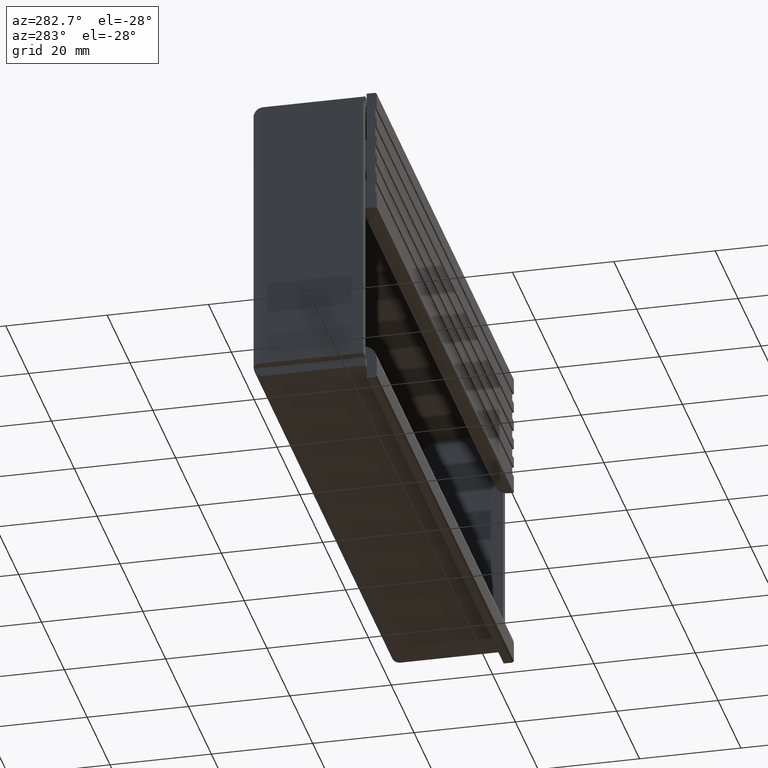
[diagram: clean part render]
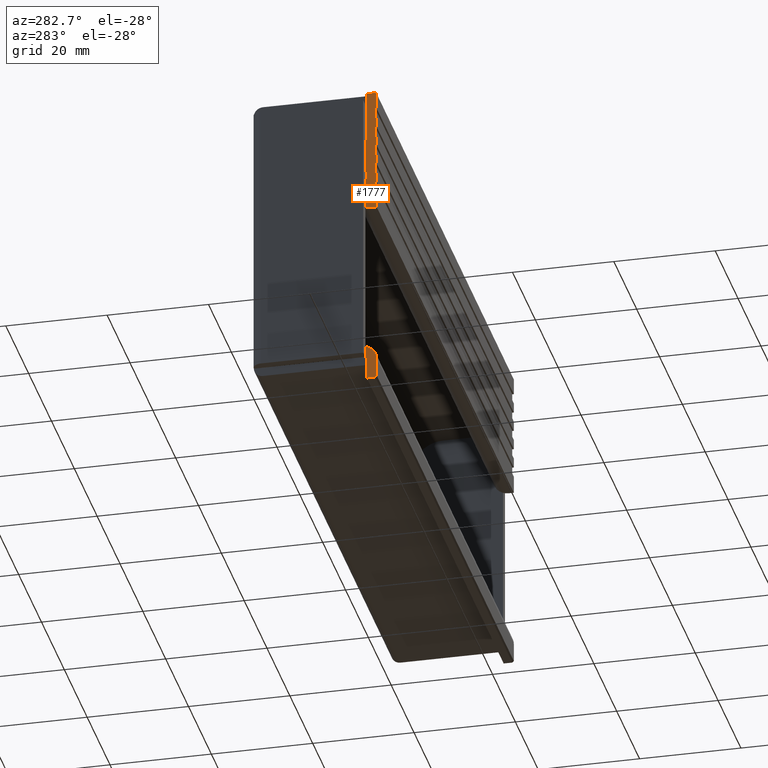
[diagram: same view with one face highlighted and labeled with its STEP entity id]
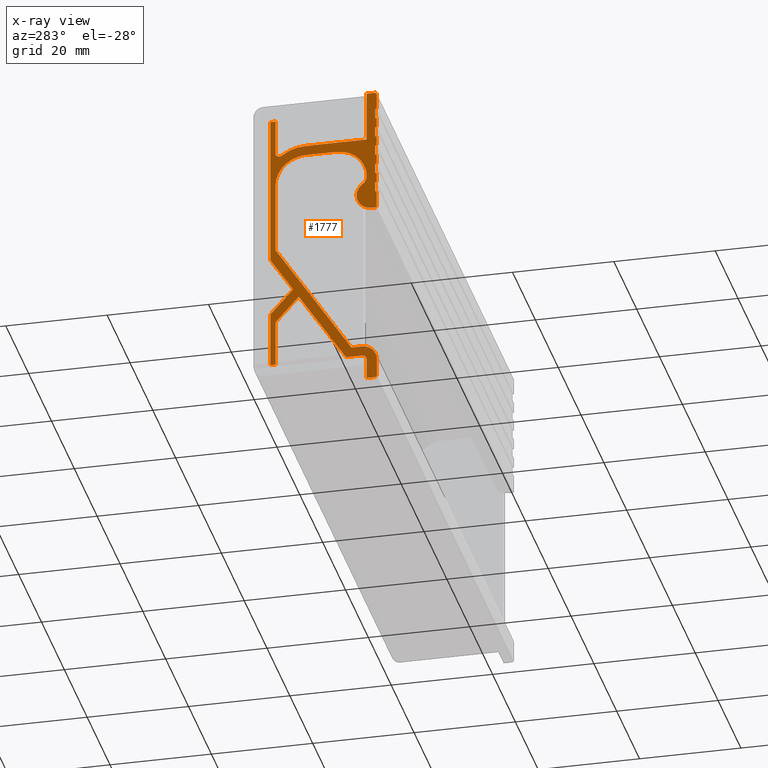
[diagram: x-ray of the same camera — body ghosted, the highlighted face saturated]
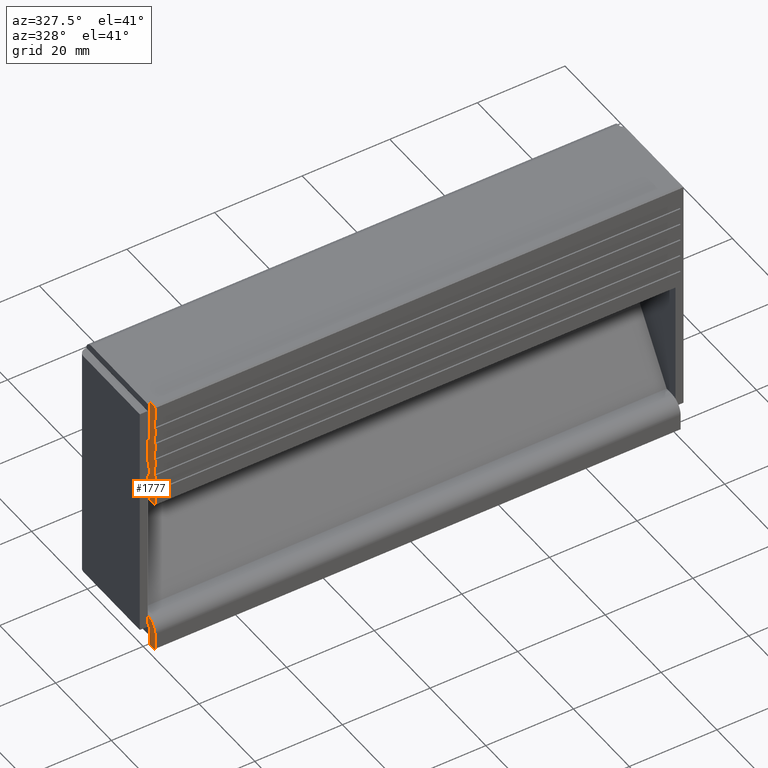
[diagram: same view with one face highlighted and labeled with its STEP entity id]
A machine part, auxiliary view. The second image highlights one B-rep face of the part: STEP entity #1777.
The next image is the same camera in x-ray: the body ghosted, the highlighted face saturated — about 0% of this face is hidden behind the body in this view.
A second angle (auxiliary view) of the same face is appended — the face is thin or edge-on in the first view.
In plain terms, the highlighted face is a freeform B-spline surface patch.
Its self-contained STEP definition (entity closure, byte-faithful):
#777=CARTESIAN_POINT('',(-60.0,18.999999999999702,27.872124824764452));
#778=VERTEX_POINT('',#777);
#786=CARTESIAN_POINT('',(-60.0,19.0,58.0));
#787=VERTEX_POINT('',#786);
#788=CARTESIAN_POINT('',(-60.0,19.0,58.0));
#789=CARTESIAN_POINT('',(-60.0,18.999999999999702,27.872124824764452));
#790=QUASI_UNIFORM_CURVE('',1,(#788,#789),.UNSPECIFIED.,.F.,.U.);
#791=EDGE_CURVE('',#787,#778,#790,.T.);
#813=CARTESIAN_POINT('',(-60.0,19.0,5.0));
#814=VERTEX_POINT('',#813);
#822=CARTESIAN_POINT('',(-60.0,19.0,16.094526800491948));
#823=VERTEX_POINT('',#822);
#824=CARTESIAN_POINT('',(-60.0,19.0,16.094526800491948));
#825=CARTESIAN_POINT('',(-60.0,19.0,5.0));
#826=QUASI_UNIFORM_CURVE('',1,(#824,#825),.UNSPECIFIED.,.F.,.U.);
#827=EDGE_CURVE('',#823,#814,#826,.T.);
#1347=CARTESIAN_POINT('',(-60.0,-3.048949959297925,65.096899879831994));
#1348=CARTESIAN_POINT('',(-60.0,20.048950522561821,65.096899879831994));
#1349=CARTESIAN_POINT('',(-60.0,-3.048949959297925,-3.096901542801561));
#1350=CARTESIAN_POINT('',(-60.0,20.048950522561821,-3.096901542801561));
#1351=B_SPLINE_SURFACE_WITH_KNOTS('',1,1,((#1347,#1349),(#1348,#1350)),.UNSPECIFIED.,.F.,.F.,.U.,(2,2),(2,2),(0.0,23.097900481859739),(0.0,68.193801422633555),.UNSPECIFIED.);
#1352=CARTESIAN_POINT('',(-60.0,14.518179000000000,21.0));
#1353=VERTEX_POINT('',#1352);
#1354=CARTESIAN_POINT('',(-60.0,19.0,16.094526800491948));
#1355=CARTESIAN_POINT('',(-60.0,14.518179000000000,21.0));
#1356=QUASI_UNIFORM_CURVE('',1,(#1354,#1355),.UNSPECIFIED.,.F.,.U.);
#1357=EDGE_CURVE('',#823,#1353,#1356,.T.);
#1358=ORIENTED_EDGE('',*,*,#1357,.F.);
#1359=ORIENTED_EDGE('',*,*,#827,.T.);
#1360=CARTESIAN_POINT('',(-60.0,18.0,5.0));
#1361=VERTEX_POINT('',#1360);
#1362=CARTESIAN_POINT('',(-60.0,18.0,5.0));
#1363=CARTESIAN_POINT('',(-60.0,19.0,5.0));
#1364=QUASI_UNIFORM_CURVE('',1,(#1362,#1363),.UNSPECIFIED.,.F.,.U.);
#1365=EDGE_CURVE('',#1361,#814,#1364,.T.);
#1366=ORIENTED_EDGE('',*,*,#1365,.F.);
#1367=CARTESIAN_POINT('',(-60.0,18.0,14.223929999999999));
#1368=VERTEX_POINT('',#1367);
#1369=CARTESIAN_POINT('',(-60.0,18.0,14.223929999999999));
#1370=CARTESIAN_POINT('',(-60.0,18.0,5.0));
#1371=QUASI_UNIFORM_CURVE('',1,(#1369,#1370),.UNSPECIFIED.,.F.,.U.);
#1372=EDGE_CURVE('',#1368,#1361,#1371,.T.);
#1373=ORIENTED_EDGE('',*,*,#1372,.F.);
#1374=CARTESIAN_POINT('',(-60.0,13.389838000000100,19.269876000000000));
#1375=VERTEX_POINT('',#1374);
#1376=CARTESIAN_POINT('',(-60.0,13.389838000000100,19.269876000000000));
#1377=CARTESIAN_POINT('',(-60.0,18.0,14.223929999999999));
#1378=QUASI_UNIFORM_CURVE('',1,(#1376,#1377),.UNSPECIFIED.,.F.,.U.);
#1379=EDGE_CURVE('',#1375,#1368,#1378,.T.);
#1380=ORIENTED_EDGE('',*,*,#1379,.F.);
#1381=CARTESIAN_POINT('',(-60.0,4.083395999999909,5.0));
#1382=VERTEX_POINT('',#1381);
#1383=CARTESIAN_POINT('',(-60.0,4.083395999999909,5.0));
#1384=CARTESIAN_POINT('',(-60.0,13.389838000000100,19.269876000000000));
#1385=QUASI_UNIFORM_CURVE('',1,(#1383,#1384),.UNSPECIFIED.,.F.,.U.);
#1386=EDGE_CURVE('',#1382,#1375,#1385,.T.);
#1387=ORIENTED_EDGE('',*,*,#1386,.F.);
#1388=CARTESIAN_POINT('',(-60.0,1.0,5.0));
#1389=VERTEX_POINT('',#1388);
#1390=CARTESIAN_POINT('',(-60.0,1.0,5.0));
#1391=CARTESIAN_POINT('',(-60.0,4.083395999999909,5.0));
#1392=QUASI_UNIFORM_CURVE('',1,(#1390,#1391),.UNSPECIFIED.,.F.,.U.);
#1393=EDGE_CURVE('',#1389,#1382,#1392,.T.);
#1394=ORIENTED_EDGE('',*,*,#1393,.F.);
#1395=CARTESIAN_POINT('',(-60.0,0.0,4.0));
#1396=VERTEX_POINT('',#1395);
#1397=CARTESIAN_POINT('',(-60.0,1.0,5.0));
#1398=CARTESIAN_POINT('',(-60.0,0.0,5.000000000000001));
#1399=CARTESIAN_POINT('',(-60.0,0.0,4.0));
#1407=(BOUNDED_CURVE()B_SPLINE_CURVE(2,(#1397,#1398,#1399),.UNSPECIFIED.,.F.,.U.)CURVE()GEOMETRIC_REPRESENTATION_ITEM()QUASI_UNIFORM_CURVE()RATIONAL_B_SPLINE_CURVE((1.0,0.707106781186548,1.0))REPRESENTATION_ITEM(''));
#1408=EDGE_CURVE('',#1389,#1396,#1407,.T.);
#1409=ORIENTED_EDGE('',*,*,#1408,.T.);
#1410=CARTESIAN_POINT('',(-60.0,0.0,0.0));
#1411=VERTEX_POINT('',#1410);
#1412=CARTESIAN_POINT('',(-60.0,0.0,0.0));
#1413=CARTESIAN_POINT('',(-60.0,0.0,4.0));
#1414=QUASI_UNIFORM_CURVE('',1,(#1412,#1413),.UNSPECIFIED.,.F.,.U.);
#1415=EDGE_CURVE('',#1411,#1396,#1414,.T.);
#1416=ORIENTED_EDGE('',*,*,#1415,.F.);
#1417=CARTESIAN_POINT('',(-60.0,-1.699999999999905,-1.040915E-016));
#1418=VERTEX_POINT('',#1417);
#1419=CARTESIAN_POINT('',(-60.0,-1.699999999999905,-1.040915E-016));
#1420=CARTESIAN_POINT('',(-60.0,0.0,0.0));
#1421=QUASI_UNIFORM_CURVE('',1,(#1419,#1420),.UNSPECIFIED.,.F.,.U.);
#1422=EDGE_CURVE('',#1418,#1411,#1421,.T.);
#1423=ORIENTED_EDGE('',*,*,#1422,.F.);
#1424=CARTESIAN_POINT('',(-60.0,-2.0,0.299999999999912));
#1425=VERTEX_POINT('',#1424);
#1426=CARTESIAN_POINT('',(-60.0,-2.0,0.299999999999912));
#1427=CARTESIAN_POINT('',(-60.0,-1.699999999999905,-1.040915E-016));
#1428=QUASI_UNIFORM_CURVE('',1,(#1426,#1427),.UNSPECIFIED.,.F.,.U.);
#1429=EDGE_CURVE('',#1425,#1418,#1428,.T.);
#1430=ORIENTED_EDGE('',*,*,#1429,.F.);
#1431=CARTESIAN_POINT('',(-60.0,-2.0,4.0));
#1432=VERTEX_POINT('',#1431);
#1433=CARTESIAN_POINT('',(-60.0,-2.0,4.0));
#1434=CARTESIAN_POINT('',(-60.0,-2.0,0.299999999999912));
#1435=QUASI_UNIFORM_CURVE('',1,(#1433,#1434),.UNSPECIFIED.,.F.,.U.);
#1436=EDGE_CURVE('',#1432,#1425,#1435,.T.);
#1437=ORIENTED_EDGE('',*,*,#1436,.F.);
#1438=CARTESIAN_POINT('',(-60.0,1.0,7.0));
#1439=VERTEX_POINT('',#1438);
#1440=CARTESIAN_POINT('',(-60.0,1.0,7.0));
#1441=CARTESIAN_POINT('',(-60.0,-2.000000000000000,6.999999999999999));
#1442=CARTESIAN_POINT('',(-60.0,-2.0,4.0));
#1450=(BOUNDED_CURVE()B_SPLINE_CURVE(2,(#1440,#1441,#1442),.UNSPECIFIED.,.F.,.U.)CURVE()GEOMETRIC_REPRESENTATION_ITEM()QUASI_UNIFORM_CURVE()RATIONAL_B_SPLINE_CURVE((1.0,0.707106781186548,1.0))REPRESENTATION_ITEM(''));
#1451=EDGE_CURVE('',#1439,#1432,#1450,.T.);
#1452=ORIENTED_EDGE('',*,*,#1451,.F.);
#1453=CARTESIAN_POINT('',(-60.0,3.0,7.0));
#1454=VERTEX_POINT('',#1453);
#1455=CARTESIAN_POINT('',(-60.0,3.0,7.0));
#1456=CARTESIAN_POINT('',(-60.0,1.0,7.0));
#1457=QUASI_UNIFORM_CURVE('',1,(#1455,#1456),.UNSPECIFIED.,.F.,.U.);
#1458=EDGE_CURVE('',#1454,#1439,#1457,.T.);
#1459=ORIENTED_EDGE('',*,*,#1458,.F.);
#1460=CARTESIAN_POINT('',(-60.0,18.0,30.0));
#1461=VERTEX_POINT('',#1460);
#1462=CARTESIAN_POINT('',(-60.0,18.0,30.0));
#1463=CARTESIAN_POINT('',(-60.0,3.0,7.0));
#1464=QUASI_UNIFORM_CURVE('',1,(#1462,#1463),.UNSPECIFIED.,.F.,.U.);
#1465=EDGE_CURVE('',#1461,#1454,#1464,.T.);
#1466=ORIENTED_EDGE('',*,*,#1465,.F.);
#1467=CARTESIAN_POINT('',(-60.0,18.0,44.0));
#1468=VERTEX_POINT('',#1467);
#1469=CARTESIAN_POINT('',(-60.0,18.0,44.0));
#1470=CARTESIAN_POINT('',(-60.0,18.0,30.0));
#1471=QUASI_UNIFORM_CURVE('',1,(#1469,#1470),.UNSPECIFIED.,.F.,.U.);
#1472=EDGE_CURVE('',#1468,#1461,#1471,.T.);
#1473=ORIENTED_EDGE('',*,*,#1472,.F.);
#1474=CARTESIAN_POINT('',(-60.0,12.0,50.0));
#1475=VERTEX_POINT('',#1474);
#1476=CARTESIAN_POINT('',(-60.0,18.0,44.0));
#1477=CARTESIAN_POINT('',(-60.0,18.000000000000007,49.999999999999986));
#1478=CARTESIAN_POINT('',(-60.0,12.0,49.999999999999993));
#1486=(BOUNDED_CURVE()B_SPLINE_CURVE(2,(#1476,#1477,#1478),.UNSPECIFIED.,.F.,.U.)CURVE()GEOMETRIC_REPRESENTATION_ITEM()QUASI_UNIFORM_CURVE()RATIONAL_B_SPLINE_CURVE((1.0,0.707106781186548,1.0))REPRESENTATION_ITEM(''));
#1487=EDGE_CURVE('',#1468,#1475,#1486,.T.);
#1488=ORIENTED_EDGE('',*,*,#1487,.T.);
#1489=CARTESIAN_POINT('',(-60.0,6.0,50.0));
#1490=VERTEX_POINT('',#1489);
#1491=CARTESIAN_POINT('',(-60.0,6.0,50.0));
#1492=CARTESIAN_POINT('',(-60.0,12.0,50.0));
#1493=QUASI_UNIFORM_CURVE('',1,(#1491,#1492),.UNSPECIFIED.,.F.,.U.);
#1494=EDGE_CURVE('',#1490,#1475,#1493,.T.);
#1495=ORIENTED_EDGE('',*,*,#1494,.F.);
#1496=CARTESIAN_POINT('',(-60.0,-4.440892E-016,44.0));
#1497=VERTEX_POINT('',#1496);
#1498=CARTESIAN_POINT('',(-60.0,6.0,49.999999999999993));
#1499=CARTESIAN_POINT('',(-60.0,0.0,49.999999999999986));
#1500=CARTESIAN_POINT('',(-60.0,0.0,44.0));
#1508=(BOUNDED_CURVE()B_SPLINE_CURVE(2,(#1498,#1499,#1500),.UNSPECIFIED.,.F.,.U.)CURVE()GEOMETRIC_REPRESENTATION_ITEM()QUASI_UNIFORM_CURVE()RATIONAL_B_SPLINE_CURVE((1.0,0.707106781186548,1.0))REPRESENTATION_ITEM(''));
#1509=EDGE_CURVE('',#1490,#1497,#1508,.T.);
#1510=ORIENTED_EDGE('',*,*,#1509,.T.);
#1511=CARTESIAN_POINT('',(-60.0,0.800000014834853,42.399999988873851));
#1512=VERTEX_POINT('',#1511);
#1513=CARTESIAN_POINT('',(-60.0,0.0,44.0));
#1514=CARTESIAN_POINT('',(-60.000000000000007,0.0,42.999999988410266));
#1515=CARTESIAN_POINT('',(-60.0,0.800000014834856,42.399999988873859));
#1523=(BOUNDED_CURVE()B_SPLINE_CURVE(2,(#1513,#1514,#1515),.UNSPECIFIED.,.F.,.U.)CURVE()GEOMETRIC_REPRESENTATION_ITEM()QUASI_UNIFORM_CURVE()RATIONAL_B_SPLINE_CURVE((1.0,0.894427188926682,1.0))REPRESENTATION_ITEM(''));
#1524=EDGE_CURVE('',#1497,#1512,#1523,.T.);
#1525=ORIENTED_EDGE('',*,*,#1524,.T.);
#1526=CARTESIAN_POINT('',(-60.0,-1.0,37.0));
#1527=VERTEX_POINT('',#1526);
#1528=CARTESIAN_POINT('',(-60.0,-1.0,37.0));
#1529=CARTESIAN_POINT('',(-60.0,1.162277653124168,37.000000000000007));
#1530=CARTESIAN_POINT('',(-60.0,1.846049891219545,39.051316693153503));
#1531=CARTESIAN_POINT('',(-60.0,2.529822129314922,41.102633386306991));
#1532=CARTESIAN_POINT('',(-60.0,0.800000014834858,42.399999988873859));
#1540=(BOUNDED_CURVE()B_SPLINE_CURVE(2,(#1528,#1529,#1530,#1531,#1532),.UNSPECIFIED.,.F.,.U.)B_SPLINE_CURVE_WITH_KNOTS((3,2,3),(0.0,0.500000000000000,1.0),.UNSPECIFIED.)CURVE()GEOMETRIC_REPRESENTATION_ITEM()RATIONAL_B_SPLINE_CURVE((1.0,0.811242186079112,1.0,0.811242186079112,1.0))REPRESENTATION_ITEM(''));
#1541=EDGE_CURVE('',#1527,#1512,#1540,.T.);
#1542=ORIENTED_EDGE('',*,*,#1541,.F.);
#1543=CARTESIAN_POINT('',(-60.0,-2.0,37.0));
#1544=VERTEX_POINT('',#1543);
#1545=CARTESIAN_POINT('',(-60.0,-2.0,37.0));
#1546=CARTESIAN_POINT('',(-60.0,-1.0,37.0));
#1547=QUASI_UNIFORM_CURVE('',1,(#1545,#1546),.UNSPECIFIED.,.F.,.U.);
#1548=EDGE_CURVE('',#1544,#1527,#1547,.T.);
#1549=ORIENTED_EDGE('',*,*,#1548,.F.);
#1550=CARTESIAN_POINT('',(-60.0,-2.0,40.500000000000000));
#1551=VERTEX_POINT('',#1550);
#1552=CARTESIAN_POINT('',(-60.0,-2.0,40.500000000000000));
#1553=CARTESIAN_POINT('',(-60.0,-2.0,37.0));
#1554=QUASI_UNIFORM_CURVE('',1,(#1552,#1553),.UNSPECIFIED.,.F.,.U.);
#1555=EDGE_CURVE('',#1551,#1544,#1554,.T.);
#1556=ORIENTED_EDGE('',*,*,#1555,.F.);
#1557=CARTESIAN_POINT('',(-60.0,-1.699999999999905,40.500000000000000));
#1558=VERTEX_POINT('',#1557);
#1559=CARTESIAN_POINT('',(-60.0,-1.699999999999905,40.500000000000000));
#1560=CARTESIAN_POINT('',(-60.0,-2.0,40.500000000000000));
#1561=QUASI_UNIFORM_CURVE('',1,(#1559,#1560),.UNSPECIFIED.,.F.,.U.);
#1562=EDGE_CURVE('',#1558,#1551,#1561,.T.);
#1563=ORIENTED_EDGE('',*,*,#1562,.F.);
#1564=CARTESIAN_POINT('',(-60.0,-1.699999999999905,42.500000000000000));
#1565=VERTEX_POINT('',#1564);
#1566=CARTESIAN_POINT('',(-60.0,-1.699999999999905,42.500000000000000));
#1567=CARTESIAN_POINT('',(-60.0,-1.699999999999905,40.500000000000000));
#1568=QUASI_UNIFORM_CURVE('',1,(#1566,#1567),.UNSPECIFIED.,.F.,.U.);
#1569=EDGE_CURVE('',#1565,#1558,#1568,.T.);
#1570=ORIENTED_EDGE('',*,*,#1569,.F.);
#1571=CARTESIAN_POINT('',(-60.0,-2.0,42.500000000000000));
#1572=VERTEX_POINT('',#1571);
#1573=CARTESIAN_POINT('',(-60.0,-2.0,42.500000000000000));
#1574=CARTESIAN_POINT('',(-60.0,-1.699999999999905,42.500000000000000));
#1575=QUASI_UNIFORM_CURVE('',1,(#1573,#1574),.UNSPECIFIED.,.F.,.U.);
#1576=EDGE_CURVE('',#1572,#1565,#1575,.T.);
#1577=ORIENTED_EDGE('',*,*,#1576,.F.);
#1578=CARTESIAN_POINT('',(-60.0,-2.0,44.500000000000000));
#1579=VERTEX_POINT('',#1578);
#1580=CARTESIAN_POINT('',(-60.0,-2.0,44.500000000000000));
#1581=CARTESIAN_POINT('',(-60.0,-2.0,42.500000000000000));
#1582=QUASI_UNIFORM_CURVE('',1,(#1580,#1581),.UNSPECIFIED.,.F.,.U.);
#1583=EDGE_CURVE('',#1579,#1572,#1582,.T.);
#1584=ORIENTED_EDGE('',*,*,#1583,.F.);
#1585=CARTESIAN_POINT('',(-60.0,-1.699999999999905,44.500000000000000));
#1586=VERTEX_POINT('',#1585);
#1587=CARTESIAN_POINT('',(-60.0,-1.699999999999905,44.500000000000000));
#1588=CARTESIAN_POINT('',(-60.0,-2.0,44.500000000000000));
#1589=QUASI_UNIFORM_CURVE('',1,(#1587,#1588),.UNSPECIFIED.,.F.,.U.);
#1590=EDGE_CURVE('',#1586,#1579,#1589,.T.);
#1591=ORIENTED_EDGE('',*,*,#1590,.F.);
#1592=CARTESIAN_POINT('',(-60.0,-1.699999999999905,46.500000000000000));
#1593=VERTEX_POINT('',#1592);
#1594=CARTESIAN_POINT('',(-60.0,-1.699999999999905,46.500000000000000));
#1595=CARTESIAN_POINT('',(-60.0,-1.699999999999905,44.500000000000000));
#1596=QUASI_UNIFORM_CURVE('',1,(#1594,#1595),.UNSPECIFIED.,.F.,.U.);
#1597=EDGE_CURVE('',#1593,#1586,#1596,.T.);
#1598=ORIENTED_EDGE('',*,*,#1597,.F.);
#1599=CARTESIAN_POINT('',(-60.0,-2.0,46.500000000000000));
#1600=VERTEX_POINT('',#1599);
#1601=CARTESIAN_POINT('',(-60.0,-2.0,46.500000000000000));
#1602=CARTESIAN_POINT('',(-60.0,-1.699999999999905,46.500000000000000));
#1603=QUASI_UNIFORM_CURVE('',1,(#1601,#1602),.UNSPECIFIED.,.F.,.U.);
#1604=EDGE_CURVE('',#1600,#1593,#1603,.T.);
#1605=ORIENTED_EDGE('',*,*,#1604,.F.);
#1606=CARTESIAN_POINT('',(-60.0,-2.0,48.500000000000000));
#1607=VERTEX_POINT('',#1606);
#1608=CARTESIAN_POINT('',(-60.0,-2.0,48.500000000000000));
#1609=CARTESIAN_POINT('',(-60.0,-2.0,46.500000000000000));
#1610=QUASI_UNIFORM_CURVE('',1,(#1608,#1609),.UNSPECIFIED.,.F.,.U.);
#1611=EDGE_CURVE('',#1607,#1600,#1610,.T.);
#1612=ORIENTED_EDGE('',*,*,#1611,.F.);
#1613=CARTESIAN_POINT('',(-60.0,-1.699999999999905,48.500000000000000));
#1614=VERTEX_POINT('',#1613);
#1615=CARTESIAN_POINT('',(-60.0,-1.699999999999905,48.500000000000000));
#1616=CARTESIAN_POINT('',(-60.0,-2.0,48.500000000000000));
#1617=QUASI_UNIFORM_CURVE('',1,(#1615,#1616),.UNSPECIFIED.,.F.,.U.);
#1618=EDGE_CURVE('',#1614,#1607,#1617,.T.);
#1619=ORIENTED_EDGE('',*,*,#1618,.F.);
#1620=CARTESIAN_POINT('',(-60.0,-1.699999999999905,50.500000000000000));
#1621=VERTEX_POINT('',#1620);
#1622=CARTESIAN_POINT('',(-60.0,-1.699999999999905,50.500000000000000));
#1623=CARTESIAN_POINT('',(-60.0,-1.699999999999905,48.500000000000000));
#1624=QUASI_UNIFORM_CURVE('',1,(#1622,#1623),.UNSPECIFIED.,.F.,.U.);
#1625=EDGE_CURVE('',#1621,#1614,#1624,.T.);
#1626=ORIENTED_EDGE('',*,*,#1625,.F.);
#1627=CARTESIAN_POINT('',(-60.0,-2.0,50.500000000000000));
#1628=VERTEX_POINT('',#1627);
#1629=CARTESIAN_POINT('',(-60.0,-2.0,50.500000000000000));
#1630=CARTESIAN_POINT('',(-60.0,-1.699999999999905,50.500000000000000));
#1631=QUASI_UNIFORM_CURVE('',1,(#1629,#1630),.UNSPECIFIED.,.F.,.U.);
#1632=EDGE_CURVE('',#1628,#1621,#1631,.T.);
#1633=ORIENTED_EDGE('',*,*,#1632,.F.);
#1634=CARTESIAN_POINT('',(-60.0,-2.0,52.500000000000000));
#1635=VERTEX_POINT('',#1634);
#1636=CARTESIAN_POINT('',(-60.0,-2.0,52.500000000000000));
#1637=CARTESIAN_POINT('',(-60.0,-2.0,50.500000000000000));
#1638=QUASI_UNIFORM_CURVE('',1,(#1636,#1637),.UNSPECIFIED.,.F.,.U.);
#1639=EDGE_CURVE('',#1635,#1628,#1638,.T.);
#1640=ORIENTED_EDGE('',*,*,#1639,.F.);
#1641=CARTESIAN_POINT('',(-60.0,-1.699999999999905,52.500000000000000));
#1642=VERTEX_POINT('',#1641);
#1643=CARTESIAN_POINT('',(-60.0,-1.699999999999905,52.500000000000000));
#1644=CARTESIAN_POINT('',(-60.0,-2.0,52.500000000000000));
#1645=QUASI_UNIFORM_CURVE('',1,(#1643,#1644),.UNSPECIFIED.,.F.,.U.);
#1646=EDGE_CURVE('',#1642,#1635,#1645,.T.);
#1647=ORIENTED_EDGE('',*,*,#1646,.F.);
#1648=CARTESIAN_POINT('',(-60.0,-1.699999999999905,54.500000000000000));
#1649=VERTEX_POINT('',#1648);
#1650=CARTESIAN_POINT('',(-60.0,-1.699999999999905,54.500000000000000));
#1651=CARTESIAN_POINT('',(-60.0,-1.699999999999905,52.500000000000000));
#1652=QUASI_UNIFORM_CURVE('',1,(#1650,#1651),.UNSPECIFIED.,.F.,.U.);
#1653=EDGE_CURVE('',#1649,#1642,#1652,.T.);
#1654=ORIENTED_EDGE('',*,*,#1653,.F.);
#1655=CARTESIAN_POINT('',(-60.0,-2.0,54.500000000000000));
#1656=VERTEX_POINT('',#1655);
#1657=CARTESIAN_POINT('',(-60.0,-2.0,54.500000000000000));
#1658=CARTESIAN_POINT('',(-60.0,-1.699999999999905,54.500000000000000));
#1659=QUASI_UNIFORM_CURVE('',1,(#1657,#1658),.UNSPECIFIED.,.F.,.U.);
#1660=EDGE_CURVE('',#1656,#1649,#1659,.T.);
#1661=ORIENTED_EDGE('',*,*,#1660,.F.);
#1662=CARTESIAN_POINT('',(-60.0,-2.0,56.500000000000000));
#1663=VERTEX_POINT('',#1662);
#1664=CARTESIAN_POINT('',(-60.0,-2.0,56.500000000000000));
#1665=CARTESIAN_POINT('',(-60.0,-2.0,54.500000000000000));
#1666=QUASI_UNIFORM_CURVE('',1,(#1664,#1665),.UNSPECIFIED.,.F.,.U.);
#1667=EDGE_CURVE('',#1663,#1656,#1666,.T.);
#1668=ORIENTED_EDGE('',*,*,#1667,.F.);
#1669=CARTESIAN_POINT('',(-60.0,-1.699999999999905,56.500000000000000));
#1670=VERTEX_POINT('',#1669);
#1671=CARTESIAN_POINT('',(-60.0,-1.699999999999905,56.500000000000000));
#1672=CARTESIAN_POINT('',(-60.0,-2.0,56.500000000000000));
#1673=QUASI_UNIFORM_CURVE('',1,(#1671,#1672),.UNSPECIFIED.,.F.,.U.);
#1674=EDGE_CURVE('',#1670,#1663,#1673,.T.);
#1675=ORIENTED_EDGE('',*,*,#1674,.F.);
#1676=CARTESIAN_POINT('',(-60.0,-1.699999999999905,58.500000000000000));
#1677=VERTEX_POINT('',#1676);
#1678=CARTESIAN_POINT('',(-60.0,-1.699999999999905,58.500000000000000));
#1679=CARTESIAN_POINT('',(-60.0,-1.699999999999905,56.500000000000000));
#1680=QUASI_UNIFORM_CURVE('',1,(#1678,#1679),.UNSPECIFIED.,.F.,.U.);
#1681=EDGE_CURVE('',#1677,#1670,#1680,.T.);
#1682=ORIENTED_EDGE('',*,*,#1681,.F.);
#1683=CARTESIAN_POINT('',(-60.0,-2.0,58.500000000000000));
#1684=VERTEX_POINT('',#1683);
#1685=CARTESIAN_POINT('',(-60.0,-2.0,58.500000000000000));
#1686=CARTESIAN_POINT('',(-60.0,-1.699999999999905,58.500000000000000));
#1687=QUASI_UNIFORM_CURVE('',1,(#1685,#1686),.UNSPECIFIED.,.F.,.U.);
#1688=EDGE_CURVE('',#1684,#1677,#1687,.T.);
#1689=ORIENTED_EDGE('',*,*,#1688,.F.);
#1690=CARTESIAN_POINT('',(-60.0,-2.0,61.700000000000003));
#1691=VERTEX_POINT('',#1690);
#1692=CARTESIAN_POINT('',(-60.0,-2.0,61.700000000000003));
#1693=CARTESIAN_POINT('',(-60.0,-2.0,58.500000000000000));
#1694=QUASI_UNIFORM_CURVE('',1,(#1692,#1693),.UNSPECIFIED.,.F.,.U.);
#1695=EDGE_CURVE('',#1691,#1684,#1694,.T.);
#1696=ORIENTED_EDGE('',*,*,#1695,.F.);
#1697=CARTESIAN_POINT('',(-60.0,-1.699999999999905,62.0));
#1698=VERTEX_POINT('',#1697);
#1699=CARTESIAN_POINT('',(-60.0,-1.699999999999905,62.0));
#1700=CARTESIAN_POINT('',(-60.0,-2.0,61.700000000000003));
#1701=QUASI_UNIFORM_CURVE('',1,(#1699,#1700),.UNSPECIFIED.,.F.,.U.);
#1702=EDGE_CURVE('',#1698,#1691,#1701,.T.);
#1703=ORIENTED_EDGE('',*,*,#1702,.F.);
#1704=CARTESIAN_POINT('',(-60.0,0.0,62.0));
#1705=VERTEX_POINT('',#1704);
#1706=CARTESIAN_POINT('',(-60.0,0.0,62.0));
#1707=CARTESIAN_POINT('',(-60.0,-1.699999999999905,62.0));
#1708=QUASI_UNIFORM_CURVE('',1,(#1706,#1707),.UNSPECIFIED.,.F.,.U.);
#1709=EDGE_CURVE('',#1705,#1698,#1708,.T.);
#1710=ORIENTED_EDGE('',*,*,#1709,.F.);
#1711=CARTESIAN_POINT('',(-60.0,0.0,52.0));
#1712=VERTEX_POINT('',#1711);
#1713=CARTESIAN_POINT('',(-60.0,0.0,52.0));
#1714=CARTESIAN_POINT('',(-60.0,0.0,62.0));
#1715=QUASI_UNIFORM_CURVE('',1,(#1713,#1714),.UNSPECIFIED.,.F.,.U.);
#1716=EDGE_CURVE('',#1712,#1705,#1715,.T.);
#1717=ORIENTED_EDGE('',*,*,#1716,.F.);
#1718=CARTESIAN_POINT('',(-60.0,12.0,52.0));
#1719=VERTEX_POINT('',#1718);
#1720=CARTESIAN_POINT('',(-60.0,12.0,52.0));
#1721=CARTESIAN_POINT('',(-60.0,0.0,52.0));
#1722=QUASI_UNIFORM_CURVE('',1,(#1720,#1721),.UNSPECIFIED.,.F.,.U.);
#1723=EDGE_CURVE('',#1719,#1712,#1722,.T.);
#1724=ORIENTED_EDGE('',*,*,#1723,.F.);
#1725=CARTESIAN_POINT('',(-60.0,16.727272722990602,50.453904481343699));
#1726=VERTEX_POINT('',#1725);
#1727=CARTESIAN_POINT('',(-60.0,16.727272722990602,50.453904481343699));
#1728=CARTESIAN_POINT('',(-60.0,14.616468331732939,52.0));
#1729=CARTESIAN_POINT('',(-60.0,12.0,52.0));
#1737=(BOUNDED_CURVE()B_SPLINE_CURVE(2,(#1727,#1728,#1729),.UNSPECIFIED.,.F.,.U.)CURVE()GEOMETRIC_REPRESENTATION_ITEM()QUASI_UNIFORM_CURVE()RATIONAL_B_SPLINE_CURVE((1.0,0.950457290031120,1.0))REPRESENTATION_ITEM(''));
#1738=EDGE_CURVE('',#1726,#1719,#1737,.T.);
#1739=ORIENTED_EDGE('',*,*,#1738,.F.);
#1740=CARTESIAN_POINT('',(-60.0,18.0,51.099294999999799));
#1741=VERTEX_POINT('',#1740);
#1742=CARTESIAN_POINT('',(-60.0,16.727272722990570,50.453904481343663));
#1743=CARTESIAN_POINT('',(-60.0,17.123627222252523,50.163587878061833));
#1744=CARTESIAN_POINT('',(-60.0,17.561813611126261,50.385788930786809));
#1745=CARTESIAN_POINT('',(-60.0,18.000000000000004,50.607989983511786));
#1746=CARTESIAN_POINT('',(-60.0,18.0,51.099294999999799));
#1754=(BOUNDED_CURVE()B_SPLINE_CURVE(2,(#1742,#1743,#1744,#1745,#1746),.UNSPECIFIED.,.F.,.U.)B_SPLINE_CURVE_WITH_KNOTS((3,2,3),(0.0,0.500000000000000,1.0),.UNSPECIFIED.)CURVE()GEOMETRIC_REPRESENTATION_ITEM()RATIONAL_B_SPLINE_CURVE((1.0,0.852134676535296,1.0,0.852134676535296,1.0))REPRESENTATION_ITEM(''));
#1755=EDGE_CURVE('',#1726,#1741,#1754,.T.);
#1756=ORIENTED_EDGE('',*,*,#1755,.T.);
#1757=CARTESIAN_POINT('',(-60.0,18.0,58.0));
#1758=VERTEX_POINT('',#1757);
#1759=CARTESIAN_POINT('',(-60.0,18.0,58.0));
#1760=CARTESIAN_POINT('',(-60.0,18.0,51.099294999999799));
#1761=QUASI_UNIFORM_CURVE('',1,(#1759,#1760),.UNSPECIFIED.,.F.,.U.);
#1762=EDGE_CURVE('',#1758,#1741,#1761,.T.);
#1763=ORIENTED_EDGE('',*,*,#1762,.F.);
#1764=CARTESIAN_POINT('',(-60.0,19.0,58.0));
#1765=CARTESIAN_POINT('',(-60.0,18.0,58.0));
#1766=QUASI_UNIFORM_CURVE('',1,(#1764,#1765),.UNSPECIFIED.,.F.,.U.);
#1767=EDGE_CURVE('',#787,#1758,#1766,.T.);
#1768=ORIENTED_EDGE('',*,*,#1767,.F.);
#1769=ORIENTED_EDGE('',*,*,#791,.T.);
#1770=CARTESIAN_POINT('',(-60.0,14.518179000000000,21.0));
#1771=CARTESIAN_POINT('',(-60.0,18.999999999999702,27.872124824764452));
#1772=QUASI_UNIFORM_CURVE('',1,(#1770,#1771),.UNSPECIFIED.,.F.,.U.);
#1773=EDGE_CURVE('',#1353,#778,#1772,.T.);
#1774=ORIENTED_EDGE('',*,*,#1773,.F.);
#1775=EDGE_LOOP('',(#1358,#1359,#1366,#1373,#1380,#1387,#1394,#1409,#1416,#1423,#1430,#1437,#1452,#1459,#1466,#1473,#1488,#1495,#1510,#1525,#1542,#1549,#1556,#1563,#1570,#1577,#1584,#1591,#1598,#1605,#1612,#1619,#1626,#1633,#1640,#1647,#1654,#1661,#1668,#1675,#1682,#1689,#1696,#1703,#1710,#1717,#1724,#1739,#1756,#1763,#1768,#1769,#1774));
#1776=FACE_OUTER_BOUND('',#1775,.T.);
#1777=ADVANCED_FACE('',(#1776),#1351,.T.);